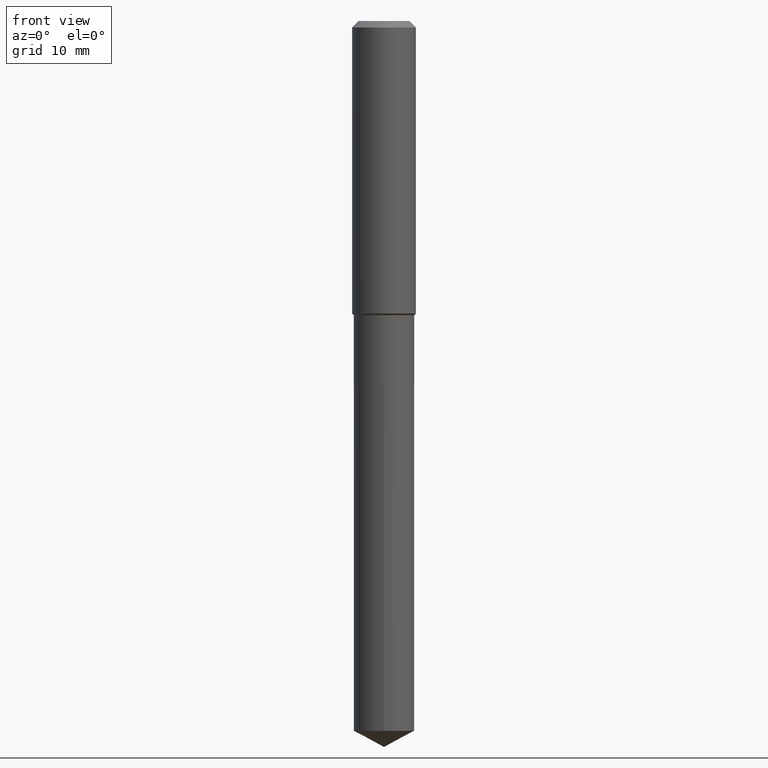
[diagram: clean part render]
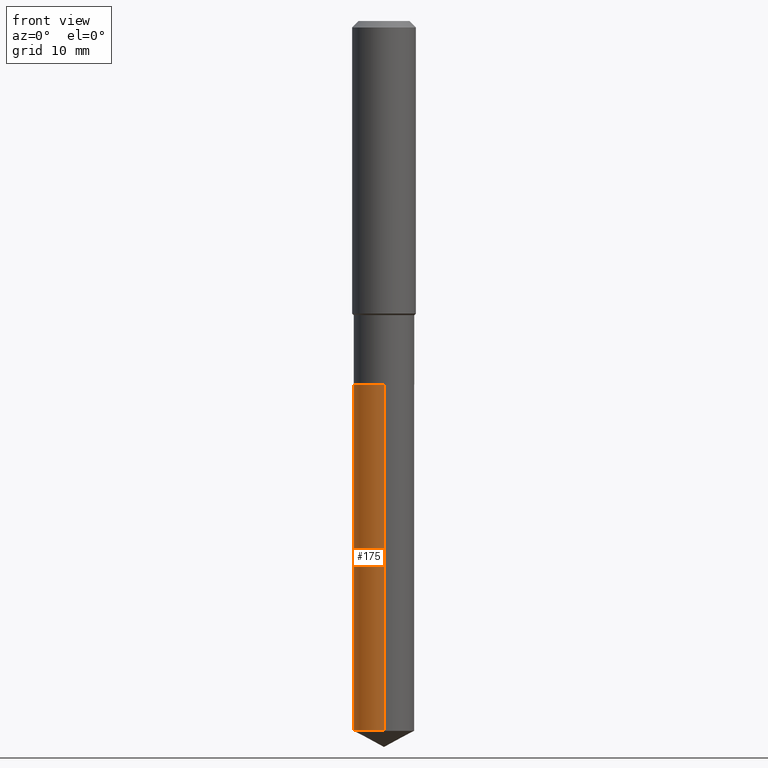
[diagram: same view with one face highlighted and labeled with its STEP entity id]
A machine part, front view. The second image highlights one B-rep face of the part: STEP entity #175.
In plain terms, the highlighted cylindrical surface (edge-blend (fillet) strip) has radius 3.7998 mm, axis along (-0, 0, 1).
Its self-contained STEP definition (entity closure, byte-faithful):
#12 = AXIS2_PLACEMENT_3D ( 'NONE', #298, #442, #296 ) ;
#14 = ORIENTED_EDGE ( 'NONE', *, *, #210, .T. ) ;
#16 = EDGE_CURVE ( 'NONE', #308, #318, #200, .T. ) ;
#24 = VERTEX_POINT ( 'NONE', #274 ) ;
#43 = AXIS2_PLACEMENT_3D ( 'NONE', #304, #114, #225 ) ;
#50 = ORIENTED_EDGE ( 'NONE', *, *, #133, .F. ) ;
#74 = ORIENTED_EDGE ( 'NONE', *, *, #425, .F. ) ;
#79 = CARTESIAN_POINT ( 'NONE',  ( -1.044651216581780009E-15, -0.1496000000000122510, -3.503156269023442793 ) ) ;
#83 = VECTOR ( 'NONE', #257, 39.37007874015748143 ) ;
#98 = FACE_OUTER_BOUND ( 'NONE', #264, .T. ) ;
#114 = DIRECTION ( 'NONE',  ( -2.445453622269775898E-29, 3.491503083074156902E-15, 1.000000000000000000 ) ) ;
#117 = DIRECTION ( 'NONE',  ( -2.445453622269776178E-29, 3.491503083074156902E-15, 1.000000000000000000 ) ) ;
#133 = EDGE_CURVE ( 'NONE', #24, #314, #146, .T. ) ;
#146 = CIRCLE ( 'NONE', #259, 0.1496000000000000107 ) ;
#175 = ADVANCED_FACE ( 'NONE', ( #98 ), #369, .T. ) ;
#200 = CIRCLE ( 'NONE', #43, 0.1496000000000000107 ) ;
#210 = EDGE_CURVE ( 'NONE', #318, #314, #289, .T. ) ;
#225 = DIRECTION ( 'NONE',  ( -6.982962677686266711E-15, -1.000000000000000000, 3.652203200085913145E-15 ) ) ;
#242 = LINE ( 'NONE', #283, #320 ) ;
#257 = DIRECTION ( 'NONE',  ( -2.445453622269776178E-29, 3.491503083074156902E-15, 1.000000000000000000 ) ) ;
#259 = AXIS2_PLACEMENT_3D ( 'NONE', #431, #357, #331 ) ;
#264 = EDGE_LOOP ( 'NONE', ( #74, #457, #14, #50 ) ) ;
#274 = CARTESIAN_POINT ( 'NONE',  ( 1.062971932697195743E-15, 0.1495999999999937102, -1.795300000000000562 ) ) ;
#283 = CARTESIAN_POINT ( 'NONE',  ( 1.062971932697153933E-15, 0.1495999999999937657, -1.795300000000000562 ) ) ;
#289 = LINE ( 'NONE', #399, #83 ) ;
#296 = DIRECTION ( 'NONE',  ( -6.982962677686266711E-15, -1.000000000000000000, 3.652203200085913145E-15 ) ) ;
#298 = CARTESIAN_POINT ( 'NONE',  ( 4.390350147744175670E-29, -6.268256447625099205E-15, -1.795300000000000118 ) ) ;
#304 = CARTESIAN_POINT ( 'NONE',  ( 8.566833447143701584E-29, -1.223124187636797631E-14, -3.503156269023443237 ) ) ;
#308 = VERTEX_POINT ( 'NONE', #483 ) ;
#314 = VERTEX_POINT ( 'NONE', #447 ) ;
#318 = VERTEX_POINT ( 'NONE', #79 ) ;
#320 = VECTOR ( 'NONE', #117, 39.37007874015748143 ) ;
#331 = DIRECTION ( 'NONE',  ( -6.982962677686265922E-15, -1.000000000000000000, 3.652203200085913145E-15 ) ) ;
#357 = DIRECTION ( 'NONE',  ( -2.445453622269775898E-29, 3.491503083074156902E-15, 1.000000000000000000 ) ) ;
#369 = CYLINDRICAL_SURFACE ( 'NONE', #12, 0.1496000000000000107 ) ;
#399 = CARTESIAN_POINT ( 'NONE',  ( -1.044651216581821622E-15, -0.1496000000000062835, -1.795299999999999452 ) ) ;
#425 = EDGE_CURVE ( 'NONE', #308, #24, #242, .T. ) ;
#431 = CARTESIAN_POINT ( 'NONE',  ( 4.390350147744175670E-29, -6.268256447625099205E-15, -1.795300000000000118 ) ) ;
#442 = DIRECTION ( 'NONE',  ( -2.445453622269775898E-29, 3.491503083074156902E-15, 1.000000000000000000 ) ) ;
#447 = CARTESIAN_POINT ( 'NONE',  ( -1.044651216581821425E-15, -0.1496000000000062835, -1.795299999999999452 ) ) ;
#457 = ORIENTED_EDGE ( 'NONE', *, *, #16, .T. ) ;
#483 = CARTESIAN_POINT ( 'NONE',  ( 1.062971932697195546E-15, 0.1495999999999878260, -3.503156269023444125 ) ) ;